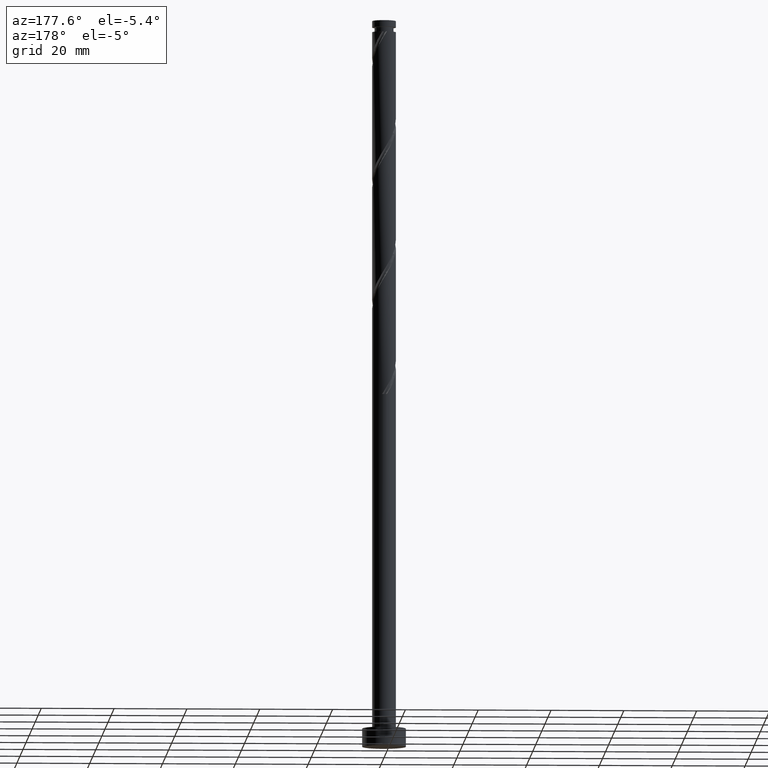
[diagram: clean part render]
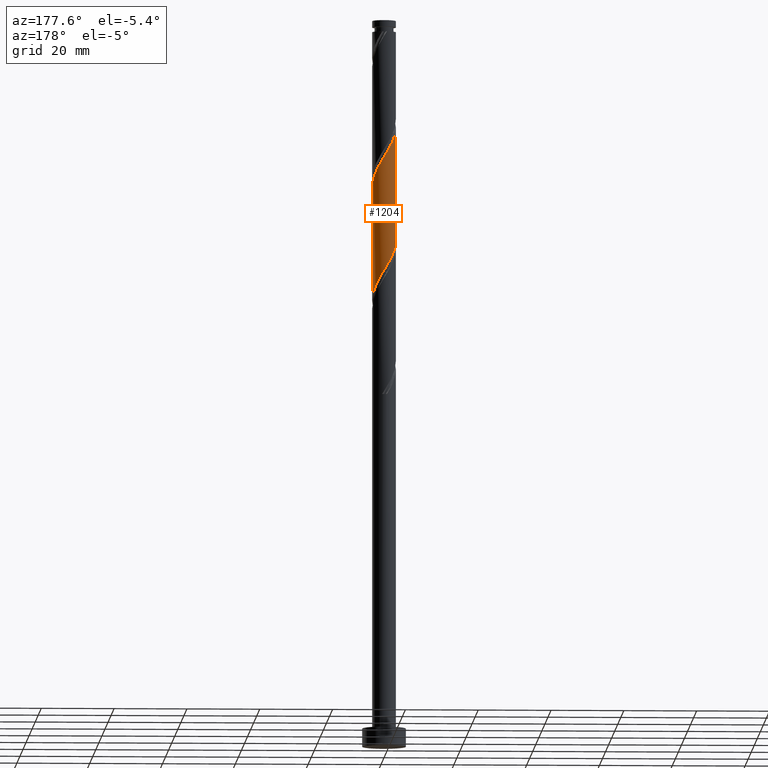
[diagram: same view with one face highlighted and labeled with its STEP entity id]
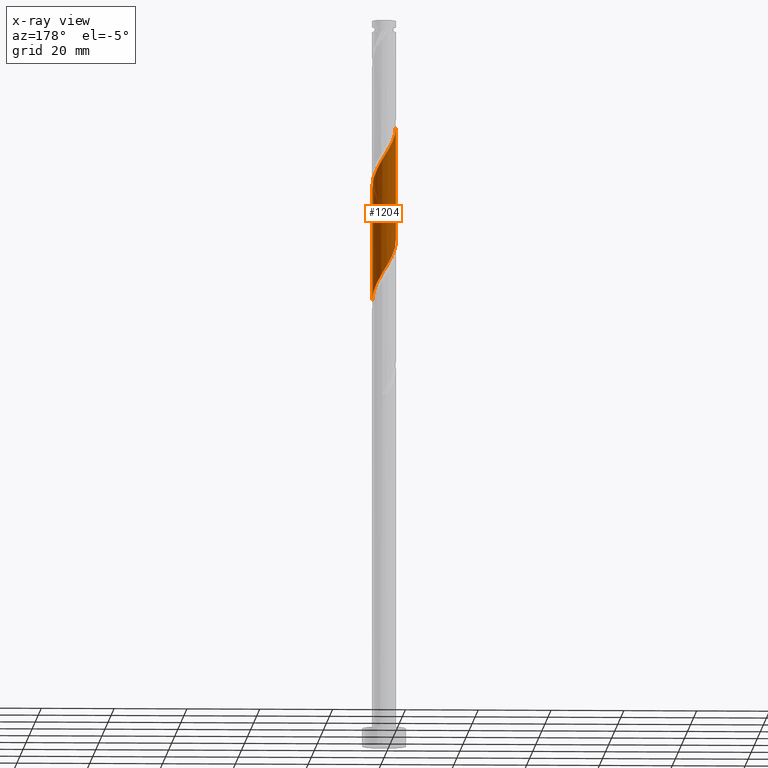
[diagram: x-ray of the same camera — body ghosted, the highlighted face saturated]
A machine part, auxiliary view. The second image highlights one B-rep face of the part: STEP entity #1204.
The next image is the same camera in x-ray: the body ghosted, the highlighted face saturated — about 0% of this face is hidden behind the body in this view.
In plain terms, the highlighted cylindrical surface (edge-blend (fillet) strip) has radius 3.25 mm, axis along (-0, -0, -1).
Its self-contained STEP definition (entity closure, byte-faithful):
#29 = CARTESIAN_POINT ( 'NONE',  ( -2.709450634661942470, 1.794819561496372229, 167.7658991964995892 ) ) ;
#30 = ORIENTED_EDGE ( 'NONE', *, *, #741, .F. ) ;
#57 = ORIENTED_EDGE ( 'NONE', *, *, #920, .F. ) ;
#61 = CARTESIAN_POINT ( 'NONE',  ( 1.794819561496372451, 2.709450634661941582, 159.4325658631662179 ) ) ;
#78 = CARTESIAN_POINT ( 'NONE',  ( -1.438113618353368928, 2.945743112651649565, 133.7381214187218177 ) ) ;
#91 = CARTESIAN_POINT ( 'NONE',  ( -3.184999999999999165, 0.6467418341193040821, 138.5992325298329888 ) ) ;
#103 = CARTESIAN_POINT ( 'NONE',  ( 2.945743112651650009, 1.438113618353366707, 125.4047880853885175 ) ) ;
#128 = AXIS2_PLACEMENT_3D ( 'NONE', #1486, #1354, #1630 ) ;
#145 = VERTEX_POINT ( 'NONE', #382 ) ;
#162 = DIRECTION ( 'NONE',  ( -0.000000000000000000, -0.000000000000000000, -1.000000000000000000 ) ) ;
#176 = CARTESIAN_POINT ( 'NONE',  ( 2.909084652796076309, 1.449043299168924825, 156.6547880853884749 ) ) ;
#199 = CARTESIAN_POINT ( 'NONE',  ( 1.032405141962544848, 3.081661828113091861, 160.8214547520551321 ) ) ;
#209 = CARTESIAN_POINT ( 'NONE',  ( -0.6467418341193035269, 3.185000000000004494, 163.5992325298329888 ) ) ;
#232 = CARTESIAN_POINT ( 'NONE',  ( -2.909084652796070980, 1.449043299168925270, 137.2103436409441031 ) ) ;
#244 = CARTESIAN_POINT ( 'NONE',  ( -3.249999999999999556, 1.269576299263346668E-14, 139.6627991850430135 ) ) ;
#296 = CARTESIAN_POINT ( 'NONE',  ( -3.250000000000004885, 3.573954482025175950E-15, 170.8689992079562217 ) ) ;
#333 = VECTOR ( 'NONE', #943, 1000.000000000000000 ) ;
#339 = CARTESIAN_POINT ( 'NONE',  ( 2.434919993993790222, 2.152594858037458536, 158.0436769742774175 ) ) ;
#347 = EDGE_LOOP ( 'NONE', ( #30, #968, #730, #57 ) ) ;
#357 = CARTESIAN_POINT ( 'NONE',  ( 2.152594858037459424, 2.434919993993784004, 127.4881214187218603 ) ) ;
#382 = CARTESIAN_POINT ( 'NONE',  ( -3.250000000000004885, 3.573954482025175950E-15, 170.8689992079562217 ) ) ;
#384 = VECTOR ( 'NONE', #162, 1000.000000000000000 ) ;
#413 = VERTEX_POINT ( 'NONE', #1606 ) ;
#427 = CARTESIAN_POINT ( 'NONE',  ( 3.250000000000006661, 0.3266372899592389634, 154.7357589104787792 ) ) ;
#445 = CARTESIAN_POINT ( 'NONE',  ( 3.099854822243945929, 1.066055038935159960, 155.9603436409440462 ) ) ;
#465 = CARTESIAN_POINT ( 'NONE',  ( -3.081661828113092305, 1.032405141962543738, 169.1547880853885033 ) ) ;
#485 = CARTESIAN_POINT ( 'NONE',  ( 2.709450634661939361, 1.794819561496368232, 126.0992325298329888 ) ) ;
#510 = CARTESIAN_POINT ( 'NONE',  ( -2.434919993993785337, 2.152594858037458536, 135.8214547520551889 ) ) ;
#518 = CARTESIAN_POINT ( 'NONE',  ( -3.249999999999998224, 0.3266372899592508983, 139.1293728158537419 ) ) ;
#570 = CARTESIAN_POINT ( 'NONE',  ( -1.066055038935161070, 3.099854822243945041, 164.2936769742774459 ) ) ;
#615 = CARTESIAN_POINT ( 'NONE',  ( 0.6467418341193045261, 3.184999999999999165, 130.2658991964996460 ) ) ;
#626 = CARTESIAN_POINT ( 'NONE',  ( -2.718314483348201804, 1.832031559402689469, 136.5158991964995607 ) ) ;
#638 = CARTESIAN_POINT ( 'NONE',  ( 3.243862860665293280, 0.1996340181341310638, 123.3214547520551889 ) ) ;
#669 = CARTESIAN_POINT ( 'NONE',  ( -3.250000000000000444, 0.000000000000000000, 200.0000000000000000 ) ) ;
#677 = FACE_OUTER_BOUND ( 'NONE', #347, .T. ) ;
#707 = CARTESIAN_POINT ( 'NONE',  ( -3.250000000000005329, 0.09991134288743908076, 170.7058355199280868 ) ) ;
#717 = CARTESIAN_POINT ( 'NONE',  ( 0.6266966655717167711, 3.217580543574532381, 161.5158991964996460 ) ) ;
#727 = CARTESIAN_POINT ( 'NONE',  ( -2.152594858037460757, 2.434919993993788889, 166.3770103076106750 ) ) ;
#730 = ORIENTED_EDGE ( 'NONE', *, *, #1722, .F. ) ;
#738 = CARTESIAN_POINT ( 'NONE',  ( -2.945743112651655338, 1.438113618353372924, 168.4603436409441315 ) ) ;
#741 = EDGE_CURVE ( 'NONE', #413, #145, #1026, .T. ) ;
#749 = CARTESIAN_POINT ( 'NONE',  ( -1.794819561496369120, 2.709450634661939361, 134.4325658631663600 ) ) ;
#758 = CARTESIAN_POINT ( 'NONE',  ( 3.249999999999999556, 4.605765608634991276E-15, 122.9961325183763563 ) ) ;
#772 = CARTESIAN_POINT ( 'NONE',  ( -0.1996340181341325348, 3.243862860665293280, 131.6547880853885317 ) ) ;
#783 = CARTESIAN_POINT ( 'NONE',  ( -2.151525504639367536, 2.473158156672226493, 135.1270103076107318 ) ) ;
#836 = CARTESIAN_POINT ( 'NONE',  ( 3.250000000000004441, -4.486135333085995847E-17, 154.2023325412895929 ) ) ;
#848 = CARTESIAN_POINT ( 'NONE',  ( -3.217580543574532381, 0.6266966655717148837, 169.8492325298329888 ) ) ;
#866 = CARTESIAN_POINT ( 'NONE',  ( -0.2274286293034444573, 3.270145177756065280, 162.9047880853885033 ) ) ;
#895 = CARTESIAN_POINT ( 'NONE',  ( -1.032405141962541295, 3.081661828113089197, 133.0436769742774175 ) ) ;
#920 = EDGE_CURVE ( 'NONE', #145, #1384, #1725, .T. ) ;
#943 = DIRECTION ( 'NONE',  ( -0.000000000000000000, -0.000000000000000000, -1.000000000000000000 ) ) ;
#960 = CARTESIAN_POINT ( 'NONE',  ( 3.185000000000004494, 0.6467418341193036380, 155.2658991964996176 ) ) ;
#967 = CARTESIAN_POINT ( 'NONE',  ( -1.449043299168926158, 2.909084652796075865, 164.9881214187217893 ) ) ;
#968 = ORIENTED_EDGE ( 'NONE', *, *, #999, .T. ) ;
#991 = CARTESIAN_POINT ( 'NONE',  ( 1.438113618353373813, 2.945743112651654005, 160.1270103076107887 ) ) ;
#999 = EDGE_CURVE ( 'NONE', #413, #1646, #1361, .T. ) ;
#1026 =( BOUNDED_CURVE ( )  B_SPLINE_CURVE ( 2, ( #836, #427, #960, #445, #176, #1662, #339, #1277, #61, #991, #199, #717, #1496, #866, #209, #570, #967, #1370, #727, #1671, #29, #738, #465, #848, #1629, #707, #296 ),
 .UNSPECIFIED., .F., .T. ) 
 B_SPLINE_CURVE_WITH_KNOTS ( ( 3, 2, 2, 2, 2, 2, 2, 2, 2, 2, 2, 2, 2, 3 ),
 ( 0.4295317669814462391, 0.4375000000000000000, 0.4479166666666666297, 0.4583333333333333703, 0.4687500000000000000, 0.4791666666666666297, 0.4895833333333333703, 0.5000000000000000000, 0.5104166666666667407, 0.5208333333333332593, 0.5312500000000000000, 0.5416666666666667407, 0.5520833333333332593, 0.5545317669814462391 ),
 .UNSPECIFIED. ) 
 CURVE ( )  GEOMETRIC_REPRESENTATION_ITEM ( )  RATIONAL_B_SPLINE_CURVE ( ( 0.9062941362546507174, 0.9031415850403547996, 0.9090909090909304879, 0.9013135103398486336, 0.9090909090909304879, 0.9013135103398486336, 0.9090909090909304879, 0.9013135103398486336, 0.9090909090909304879, 0.9013135103398486336, 0.9090909090909304879, 0.9013135103398486336, 0.9090909090909304879, 0.9013135103398486336, 0.9090909090909304879, 0.9013135103398486336, 0.9090909090909304879, 0.9013135103398486336, 0.9090909090909304879, 0.9013135103398486336, 0.9090909090909304879, 0.9013135103398486336, 0.9090909090909304879, 0.9013135103398486336, 0.9090909090909304879, 0.9072628343904241000, 0.9062941362546506063 ) ) 
 REPRESENTATION_ITEM ( '' )  );
#1040 = CARTESIAN_POINT ( 'NONE',  ( -0.6266966655717128853, 3.217580543574526164, 132.3492325298329320 ) ) ;
#1075 = CYLINDRICAL_SURFACE ( 'NONE', #128, 3.250000000000000444 ) ;
#1154 = CARTESIAN_POINT ( 'NONE',  ( 3.217580543574526608, 0.6266966655717109980, 124.0158991964996034 ) ) ;
#1161 = CARTESIAN_POINT ( 'NONE',  ( 1.449043299168927268, 2.909084652796070092, 128.8770103076107603 ) ) ;
#1204 = ADVANCED_FACE ( 'NONE', ( #677 ), #1075, .T. ) ;
#1277 = CARTESIAN_POINT ( 'NONE',  ( 2.151525504639375086, 2.473158156672228714, 158.7381214187218745 ) ) ;
#1310 = CARTESIAN_POINT ( 'NONE',  ( 0.2274286293034480100, 3.270145177756058619, 130.9603436409440462 ) ) ;
#1321 = CARTESIAN_POINT ( 'NONE',  ( 1.832031559402691023, 2.718314483348200916, 128.1825658631662748 ) ) ;
#1354 = DIRECTION ( 'NONE',  ( -0.000000000000000000, -0.000000000000000000, -1.000000000000000000 ) ) ;
#1361 = LINE ( 'NONE', #1669, #384 ) ;
#1370 = CARTESIAN_POINT ( 'NONE',  ( -1.832031559402692134, 2.718314483348207133, 165.6825658631663032 ) ) ;
#1384 = VERTEX_POINT ( 'NONE', #1491 ) ;
#1385 =( BOUNDED_CURVE ( )  B_SPLINE_CURVE ( 2, ( #244, #518, #91, #1418, #232, #626, #510, #783, #749, #78, #895, #1040, #772, #1310, #615, #1713, #1161, #1321, #357, #1707, #485, #103, #1700, #1154, #638, #1448, #758 ),
 .UNSPECIFIED., .F., .T. ) 
 B_SPLINE_CURVE_WITH_KNOTS ( ( 3, 2, 2, 2, 2, 2, 2, 2, 2, 2, 2, 2, 2, 3 ),
 ( 0.6795317669814464612, 0.6875000000000000000, 0.6979166666666666297, 0.7083333333333333703, 0.7187500000000000000, 0.7291666666666666297, 0.7395833333333333703, 0.7500000000000000000, 0.7604166666666666297, 0.7708333333333333703, 0.7812500000000000000, 0.7916666666666666297, 0.8020833333333333703, 0.8045317669814462391 ),
 .UNSPECIFIED. ) 
 CURVE ( )  GEOMETRIC_REPRESENTATION_ITEM ( )  RATIONAL_B_SPLINE_CURVE ( ( 0.9062941362546435009, 0.9031415850403480272, 0.9090909090909231605, 0.9013135103398417503, 0.9090909090909231605, 0.9013135103398417503, 0.9090909090909231605, 0.9013135103398417503, 0.9090909090909231605, 0.9013135103398417503, 0.9090909090909231605, 0.9013135103398417503, 0.9090909090909231605, 0.9013135103398417503, 0.9090909090909231605, 0.9013135103398417503, 0.9090909090909231605, 0.9013135103398417503, 0.9090909090909231605, 0.9013135103398417503, 0.9090909090909231605, 0.9013135103398417503, 0.9090909090909231605, 0.9013135103398417503, 0.9090909090909231605, 0.9072628343904169945, 0.9062941362546436119 ) ) 
 REPRESENTATION_ITEM ( '' )  );
#1418 = CARTESIAN_POINT ( 'NONE',  ( -3.099854822243938823, 1.066055038935159516, 137.9047880853885033 ) ) ;
#1448 = CARTESIAN_POINT ( 'NONE',  ( 3.249999999999999556, 0.09991134288743978853, 123.1592962064045196 ) ) ;
#1486 = CARTESIAN_POINT ( 'NONE',  ( 0.000000000000000000, 0.000000000000000000, 200.0000000000000000 ) ) ;
#1491 = CARTESIAN_POINT ( 'NONE',  ( -3.249999999999999556, 1.269576299263346668E-14, 139.6627991850430135 ) ) ;
#1496 = CARTESIAN_POINT ( 'NONE',  ( 0.1996340181341361431, 3.243862860665297276, 162.2103436409440178 ) ) ;
#1532 = CARTESIAN_POINT ( 'NONE',  ( 3.249999999999999556, 4.605765608634991276E-15, 122.9961325183763705 ) ) ;
#1606 = CARTESIAN_POINT ( 'NONE',  ( 3.250000000000004441, -4.486135333085995230E-17, 154.2023325412895929 ) ) ;
#1629 = CARTESIAN_POINT ( 'NONE',  ( -3.243862860665297276, 0.1996340181341340891, 170.5436769742773890 ) ) ;
#1630 = DIRECTION ( 'NONE',  ( -1.000000000000000000, 0.000000000000000000, 0.000000000000000000 ) ) ;
#1646 = VERTEX_POINT ( 'NONE', #1532 ) ;
#1662 = CARTESIAN_POINT ( 'NONE',  ( 2.718314483348208022, 1.832031559402690579, 157.3492325298330456 ) ) ;
#1669 = CARTESIAN_POINT ( 'NONE',  ( 3.250000000000000444, 3.980102097228898231E-16, 200.0000000000000000 ) ) ;
#1671 = CARTESIAN_POINT ( 'NONE',  ( -2.473158156672230934, 2.151525504639371977, 167.0714547520551889 ) ) ;
#1700 = CARTESIAN_POINT ( 'NONE',  ( 3.081661828113089641, 1.032405141962539075, 124.7103436409441031 ) ) ;
#1707 = CARTESIAN_POINT ( 'NONE',  ( 2.473158156672227825, 2.151525504639366648, 126.7936769742773748 ) ) ;
#1713 = CARTESIAN_POINT ( 'NONE',  ( 1.066055038935162402, 3.099854822243937935, 129.5714547520551605 ) ) ;
#1722 = EDGE_CURVE ( 'NONE', #1384, #1646, #1385, .T. ) ;
#1725 = LINE ( 'NONE', #669, #333 ) ;